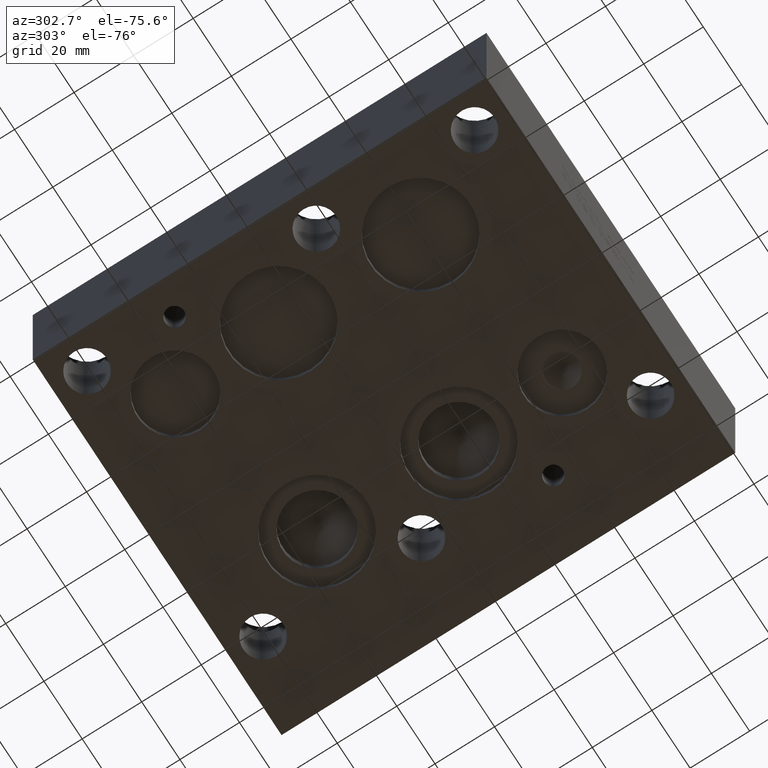
[diagram: clean part render]
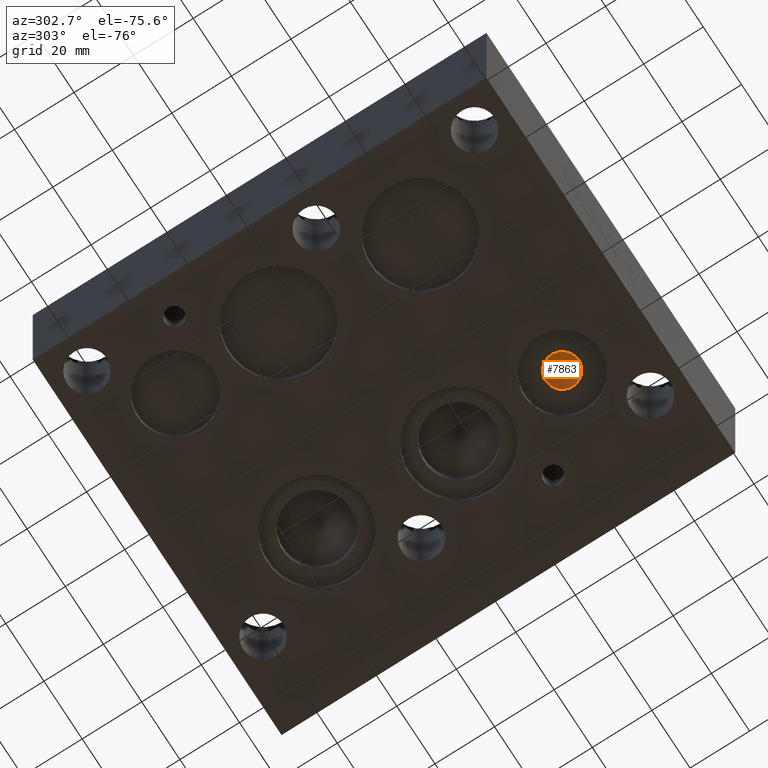
[diagram: same view with one face highlighted and labeled with its STEP entity id]
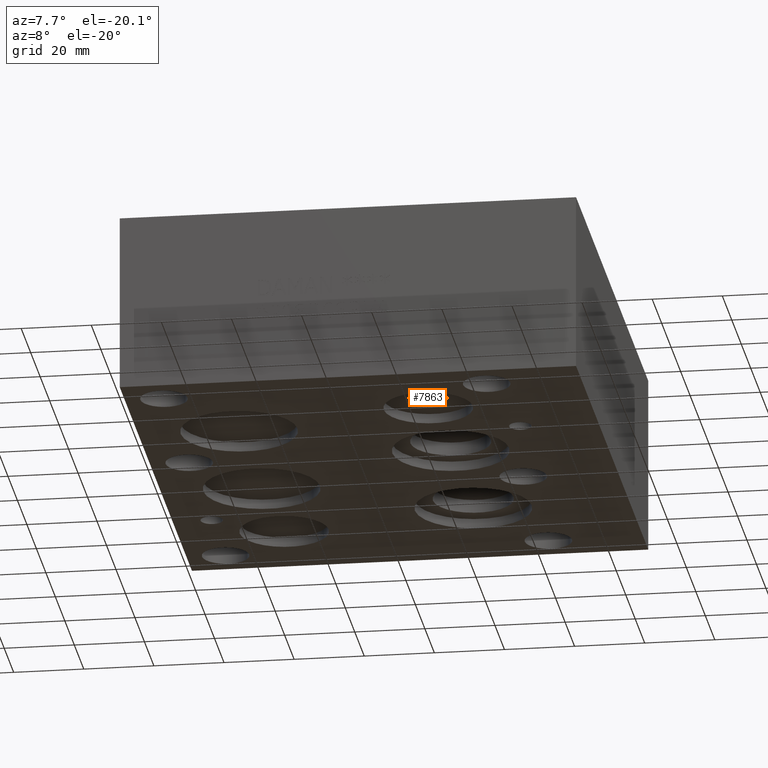
[diagram: same view with one face highlighted and labeled with its STEP entity id]
A machine part, auxiliary view. The second image highlights one B-rep face of the part: STEP entity #7863.
A second angle (auxiliary view) of the same face is appended — the face is thin or edge-on in the first view.
In plain terms, the highlighted conical surface has half-angle 60 deg.
Its self-contained STEP definition (entity closure, byte-faithful):
#56=CIRCLE('',#8188,5.5626);
#57=CIRCLE('',#8189,5.5626);
#214=CONICAL_SURFACE('',#8187,2.7813,1.0471975511966);
#921=FACE_OUTER_BOUND('',#1356,.T.);
#1356=EDGE_LOOP('',(#6502,#6503,#6504,#6505));
#2149=LINE('',#13051,#2886);
#2886=VECTOR('',#9542,2.7813);
#3528=VERTEX_POINT('',#13047);
#3529=VERTEX_POINT('',#13048);
#3530=VERTEX_POINT('',#13050);
#4566=EDGE_CURVE('',#3528,#3529,#56,.T.);
#4567=EDGE_CURVE('',#3529,#3530,#2149,.T.);
#4568=EDGE_CURVE('',#3529,#3528,#57,.T.);
#6502=ORIENTED_EDGE('',*,*,#4566,.T.);
#6503=ORIENTED_EDGE('',*,*,#4567,.T.);
#6504=ORIENTED_EDGE('',*,*,#4567,.F.);
#6505=ORIENTED_EDGE('',*,*,#4568,.T.);
#7863=ADVANCED_FACE('',(#921),#214,.F.);
#8187=AXIS2_PLACEMENT_3D('',#13046,#9538,#9539);
#8188=AXIS2_PLACEMENT_3D('',#13049,#9540,#9541);
#8189=AXIS2_PLACEMENT_3D('',#13052,#9543,#9544);
#9538=DIRECTION('center_axis',(0.,0.,-1.));
#9539=DIRECTION('ref_axis',(1.,0.,0.));
#9540=DIRECTION('center_axis',(0.,0.,-1.));
#9541=DIRECTION('ref_axis',(1.,0.,0.));
#9542=DIRECTION('',(0.866025403784439,-1.06057523872491E-16,0.5));
#9543=DIRECTION('center_axis',(0.,0.,-1.));
#9544=DIRECTION('ref_axis',(1.,0.,0.));
#13046=CARTESIAN_POINT('Origin',(84.1375,28.575,4.81735430369711));
#13047=CARTESIAN_POINT('',(89.7001,28.575,3.21157));
#13048=CARTESIAN_POINT('',(78.5749,28.575,3.21157));
#13049=CARTESIAN_POINT('Origin',(84.1375,28.575,3.21157));
#13050=CARTESIAN_POINT('',(84.1375,28.575,6.42313860739421));
#13051=CARTESIAN_POINT('',(81.3562,28.575,4.81735430369711));
#13052=CARTESIAN_POINT('Origin',(84.1375,28.575,3.21157));